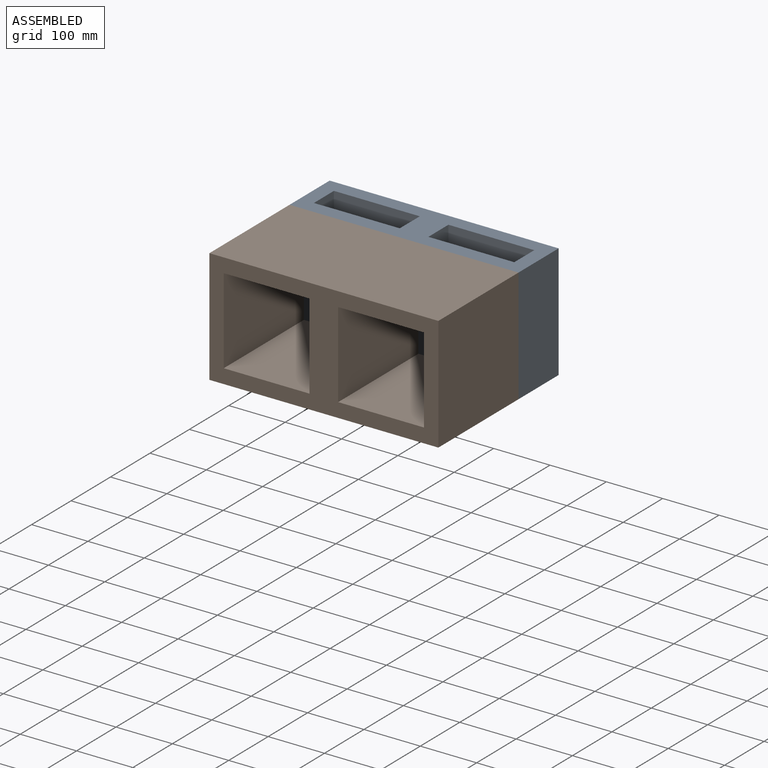
[diagram: assembled view]
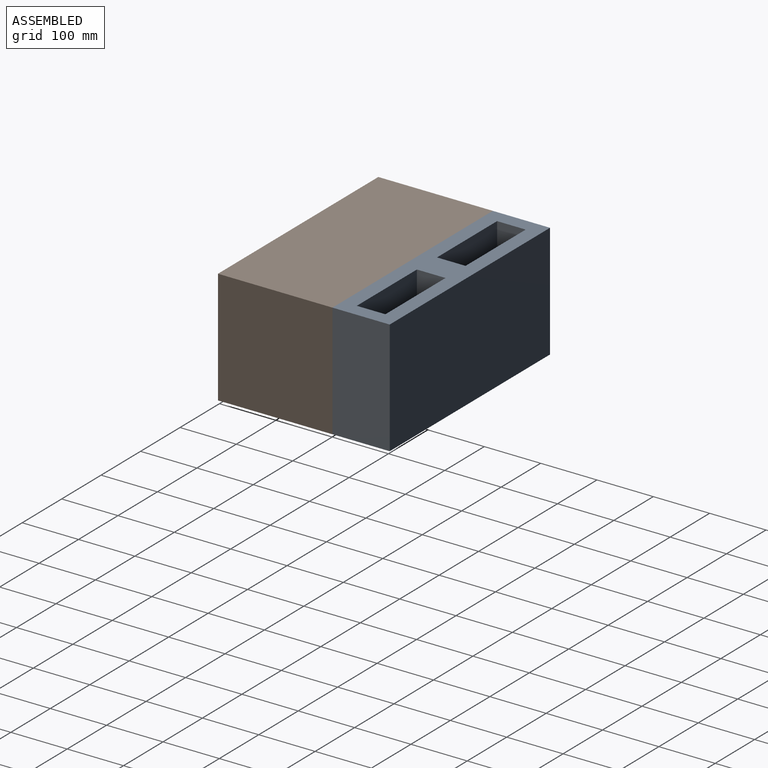
[diagram: assembled view, second angle]
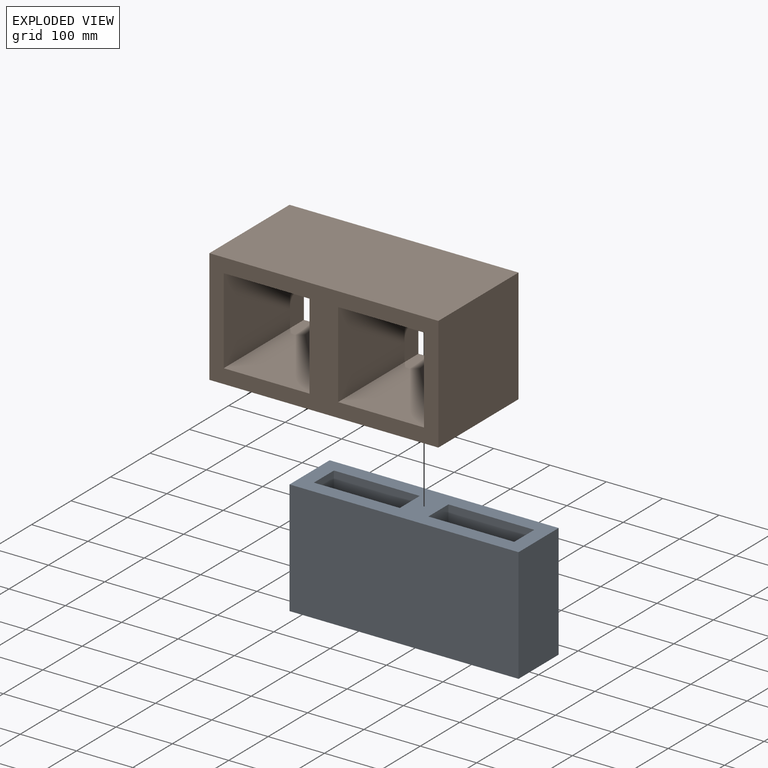
[diagram: exploded view]
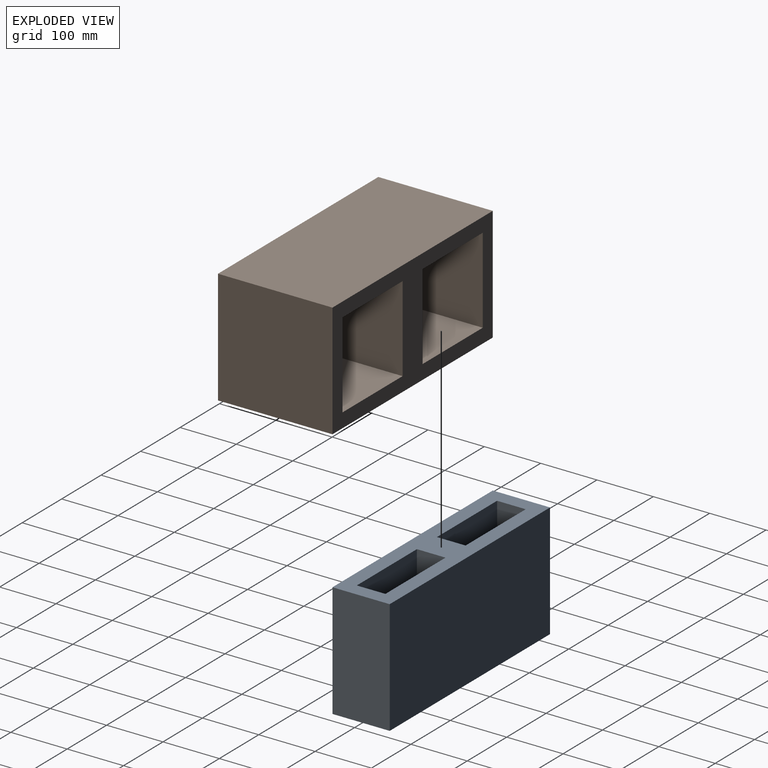
[diagram: exploded view, second angle]
ASSEMBLY  parts=2 mates=3
PART A: 14 faces, bbox 406.4x101.6x203.2 mm
  f0: plane 406.4x101.6mm, normal (0,0,1), area 25806.4mm2, adj f2,f3,f4,f5,f6,f7,f8,f9
  f1: plane 406.4x101.6mm, normal (0,0,-1), area 25806.4mm2, adj f2,f3,f4,f5,f6,f7,f8,f9
  f2: plane 203.2x101.6mm, normal (1,0,0), area 20645.1mm2, adj f0,f1,f3,f5
  f3: plane 406.4x203.2mm, normal (0,1,0), area 82580.5mm2, adj f0,f1,f2,f4
  f4: plane 203.2x101.6mm, normal (-1,0,0), area 20645.1mm2, adj f0,f1,f3,f5
  f5: plane 406.4x203.2mm, normal (0,-1,0), area 82580.5mm2, adj f0,f1,f2,f4
  f6: plane 203.2x152.4mm, normal (0,-1,0), area 30967.7mm2, adj f0,f1,f7,f9
  f7: plane 203.2x50.8mm, normal (1,0,0), area 10322.6mm2, adj f0,f1,f6,f8
  f8: plane 203.2x152.4mm, normal (0,1,0), area 30967.7mm2, adj f0,f1,f7,f9
  f9: plane 203.2x50.8mm, normal (-1,0,0), area 10322.6mm2, adj f0,f1,f6,f8
  f10: plane 203.2x152.4mm, normal (0,-1,0), area 30967.7mm2, adj f0,f1,f11,f13
  f11: plane 203.2x50.8mm, normal (1,0,0), area 10322.6mm2, adj f0,f1,f10,f12
  f12: plane 203.2x152.4mm, normal (0,1,0), area 30967.7mm2, adj f0,f1,f11,f13
  f13: plane 203.2x50.8mm, normal (-1,0,0), area 10322.6mm2, adj f0,f1,f10,f12
PART B: 14 faces, bbox 406.4x203.2x203.2 mm
  f0: plane 406.4x203.2mm, normal (0,0,1), area 36129mm2, adj f2,f3,f4,f5,f6,f7,f8,f9
  f1: plane 406.4x203.2mm, normal (0,0,-1), area 36129mm2, adj f2,f3,f4,f5,f6,f7,f8,f9
  f2: plane 203.2x203.2mm, normal (1,0,0), area 41290.2mm2, adj f0,f1,f3,f5
  f3: plane 406.4x203.2mm, normal (0,1,0), area 82580.5mm2, adj f0,f1,f2,f4
  f4: plane 203.2x203.2mm, normal (-1,0,0), area 41290.2mm2, adj f0,f1,f3,f5
  f5: plane 406.4x203.2mm, normal (0,-1,0), area 82580.5mm2, adj f0,f1,f2,f4
  f6: plane 203.2x152.4mm, normal (0,-1,0), area 30967.7mm2, adj f0,f1,f7,f9
  f7: plane 203.2x152.4mm, normal (1,0,0), area 30967.7mm2, adj f0,f1,f6,f8
  f8: plane 203.2x152.4mm, normal (0,1,0), area 30967.7mm2, adj f0,f1,f7,f9
  f9: plane 203.2x152.4mm, normal (-1,0,0), area 30967.7mm2, adj f0,f1,f6,f8
  f10: plane 203.2x152.4mm, normal (0,-1,0), area 30967.7mm2, adj f0,f1,f11,f13
  f11: plane 203.2x152.4mm, normal (1,0,0), area 30967.7mm2, adj f0,f1,f10,f12
  f12: plane 203.2x152.4mm, normal (0,1,0), area 30967.7mm2, adj f0,f1,f11,f13
  f13: plane 203.2x152.4mm, normal (-1,0,0), area 30967.7mm2, adj f0,f1,f10,f12
PLACE A t=(-108.73,7.76,49.55)mm
PLACE B rot(axis=(1,0,0),90deg) t=(-108.73,-144.64,49.55)mm
MATE planar B.f5 <-> A.f1  axis (0,0,-1) through (-108.73,-144.64,-52.05)mm
MATE planar B.f2 <-> A.f2  axis (1,0,0) through (94.47,-144.64,49.55)mm
MATE planar B.f1 <-> A.f5  axis (0,1,0) through (-108.73,-43.04,49.55)mm
